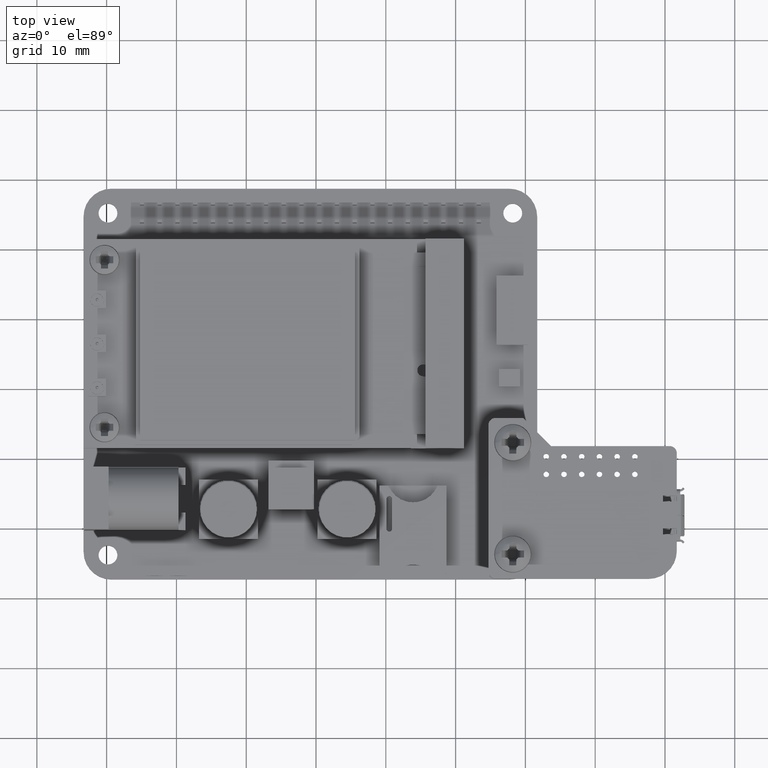
[diagram: clean part render]
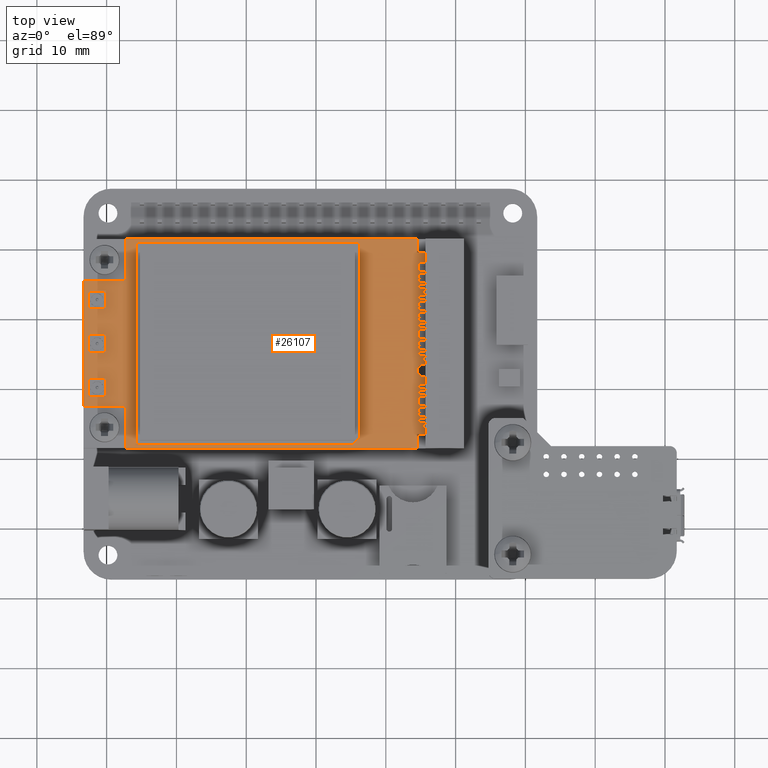
[diagram: same view with one face highlighted and labeled with its STEP entity id]
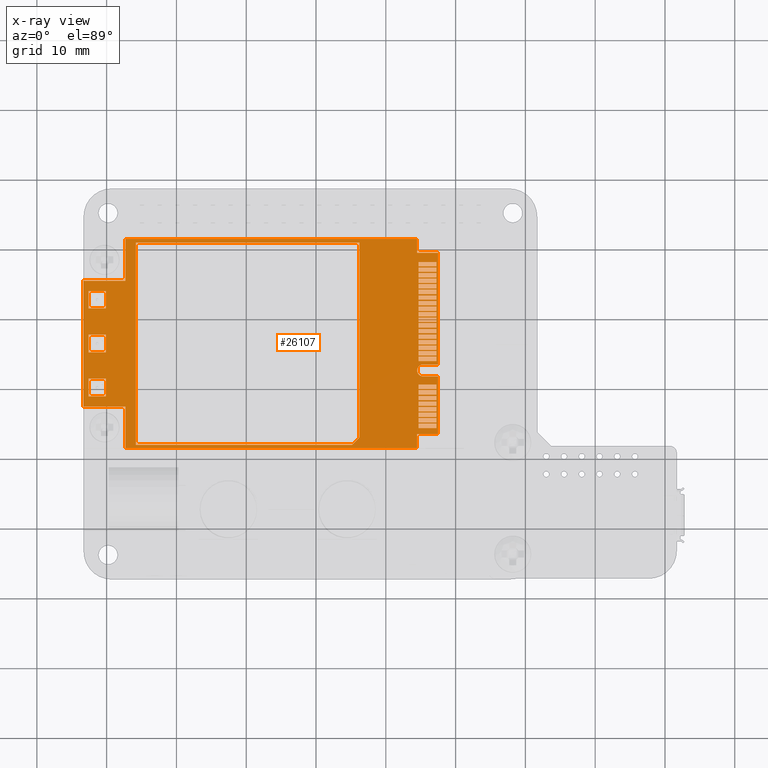
[diagram: x-ray of the same camera — body ghosted, the highlighted face saturated]
A machine part, top view. The second image highlights one B-rep face of the part: STEP entity #26107.
The next image is the same camera in x-ray: the body ghosted, the highlighted face saturated — about 0% of this face is hidden behind the body in this view.
In plain terms, the highlighted planar face has unit normal (0, 0, 1).
Its self-contained STEP definition (entity closure, byte-faithful):
#1505=LINE('',#38562,#4452);
#1511=LINE('',#38577,#4458);
#1512=LINE('',#38581,#4459);
#1516=LINE('',#38589,#4463);
#1521=LINE('',#38602,#4468);
#1525=LINE('',#38610,#4472);
#1530=LINE('',#38623,#4477);
#1534=LINE('',#38631,#4481);
#1537=LINE('',#38637,#4484);
#1540=LINE('',#38642,#4487);
#1542=LINE('',#38648,#4489);
#1546=LINE('',#38656,#4493);
#1549=LINE('',#38662,#4496);
#1552=LINE('',#38667,#4499);
#1554=LINE('',#38673,#4501);
#1558=LINE('',#38681,#4505);
#1561=LINE('',#38687,#4508);
#1564=LINE('',#38692,#4511);
#1566=LINE('',#38698,#4513);
#1570=LINE('',#38706,#4517);
#1573=LINE('',#38712,#4520);
#1576=LINE('',#38717,#4523);
#1578=LINE('',#38723,#4525);
#1582=LINE('',#38731,#4529);
#1585=LINE('',#38737,#4532);
#1588=LINE('',#38742,#4535);
#1590=LINE('',#38748,#4537);
#1594=LINE('',#38756,#4541);
#1597=LINE('',#38762,#4544);
#1600=LINE('',#38767,#4547);
#1602=LINE('',#38773,#4549);
#1606=LINE('',#38781,#4553);
#1609=LINE('',#38787,#4556);
#1612=LINE('',#38792,#4559);
#1614=LINE('',#38798,#4561);
#1618=LINE('',#38806,#4565);
#1621=LINE('',#38812,#4568);
#1624=LINE('',#38817,#4571);
#1626=LINE('',#38823,#4573);
#1630=LINE('',#38831,#4577);
#1633=LINE('',#38837,#4580);
#1636=LINE('',#38842,#4583);
#1638=LINE('',#38848,#4585);
#1642=LINE('',#38856,#4589);
#1645=LINE('',#38862,#4592);
#1648=LINE('',#38867,#4595);
#1650=LINE('',#38873,#4597);
#1654=LINE('',#38881,#4601);
#1657=LINE('',#38887,#4604);
#1660=LINE('',#38892,#4607);
#1662=LINE('',#38898,#4609);
#1666=LINE('',#38906,#4613);
#1669=LINE('',#38912,#4616);
#1672=LINE('',#38917,#4619);
#1674=LINE('',#38923,#4621);
#1678=LINE('',#38931,#4625);
#1681=LINE('',#38937,#4628);
#1684=LINE('',#38942,#4631);
#1686=LINE('',#38948,#4633);
#1690=LINE('',#38956,#4637);
#1693=LINE('',#38962,#4640);
#1696=LINE('',#38967,#4643);
#1698=LINE('',#38973,#4645);
#1702=LINE('',#38981,#4649);
#1705=LINE('',#38987,#4652);
#1708=LINE('',#38992,#4655);
#1710=LINE('',#38998,#4657);
#1714=LINE('',#39006,#4661);
#1717=LINE('',#39012,#4664);
#1720=LINE('',#39017,#4667);
#1722=LINE('',#39023,#4669);
#1726=LINE('',#39031,#4673);
#1729=LINE('',#39037,#4676);
#1732=LINE('',#39042,#4679);
#1734=LINE('',#39048,#4681);
#1738=LINE('',#39056,#4685);
#1741=LINE('',#39062,#4688);
#1744=LINE('',#39067,#4691);
#1746=LINE('',#39073,#4693);
#1750=LINE('',#39081,#4697);
#1753=LINE('',#39087,#4700);
#1756=LINE('',#39092,#4703);
#1758=LINE('',#39098,#4705);
#1762=LINE('',#39106,#4709);
#1765=LINE('',#39112,#4712);
#1768=LINE('',#39117,#4715);
#1770=LINE('',#39123,#4717);
#1774=LINE('',#39131,#4721);
#1777=LINE('',#39137,#4724);
#1780=LINE('',#39142,#4727);
#1782=LINE('',#39148,#4729);
#1786=LINE('',#39156,#4733);
#1789=LINE('',#39162,#4736);
#1792=LINE('',#39167,#4739);
#1794=LINE('',#39173,#4741);
#1798=LINE('',#39181,#4745);
#1801=LINE('',#39187,#4748);
#1804=LINE('',#39192,#4751);
#1806=LINE('',#39198,#4753);
#1810=LINE('',#39206,#4757);
#1813=LINE('',#39212,#4760);
#1816=LINE('',#39217,#4763);
#1818=LINE('',#39223,#4765);
#1822=LINE('',#39231,#4769);
#1825=LINE('',#39237,#4772);
#1828=LINE('',#39242,#4775);
#1830=LINE('',#39248,#4777);
#1834=LINE('',#39256,#4781);
#1837=LINE('',#39262,#4784);
#1840=LINE('',#39267,#4787);
#1854=LINE('',#39333,#4801);
#1857=LINE('',#39338,#4804);
#1859=LINE('',#39342,#4806);
#1861=LINE('',#39345,#4808);
#1862=LINE('',#39350,#4809);
#1865=LINE('',#39355,#4812);
#1867=LINE('',#39359,#4814);
#1869=LINE('',#39362,#4816);
#1870=LINE('',#39367,#4817);
#1873=LINE('',#39372,#4820);
#1875=LINE('',#39376,#4822);
#1877=LINE('',#39379,#4824);
#1890=LINE('',#39415,#4837);
#1894=LINE('',#39423,#4841);
#1897=LINE('',#39429,#4844);
#1900=LINE('',#39435,#4847);
#1903=LINE('',#39440,#4850);
#1906=LINE('',#39446,#4853);
#1912=LINE('',#39458,#4859);
#1914=LINE('',#39463,#4861);
#1916=LINE('',#39466,#4863);
#1919=LINE('',#39472,#4866);
#1921=LINE('',#39476,#4868);
#1924=LINE('',#39481,#4871);
#1928=LINE('',#39489,#4875);
#1930=LINE('',#39492,#4877);
#4452=VECTOR('',#31331,10.);
#4458=VECTOR('',#31345,10.);
#4459=VECTOR('',#31348,10.);
#4463=VECTOR('',#31354,10.);
#4468=VECTOR('',#31365,10.);
#4472=VECTOR('',#31371,10.);
#4477=VECTOR('',#31382,10.);
#4481=VECTOR('',#31388,10.);
#4484=VECTOR('',#31393,10.);
#4487=VECTOR('',#31398,10.);
#4489=VECTOR('',#31404,10.);
#4493=VECTOR('',#31410,10.);
#4496=VECTOR('',#31415,10.);
#4499=VECTOR('',#31420,10.);
#4501=VECTOR('',#31426,10.);
#4505=VECTOR('',#31432,10.);
#4508=VECTOR('',#31437,10.);
#4511=VECTOR('',#31442,10.);
#4513=VECTOR('',#31448,10.);
#4517=VECTOR('',#31454,10.);
#4520=VECTOR('',#31459,10.);
#4523=VECTOR('',#31464,10.);
#4525=VECTOR('',#31470,10.);
#4529=VECTOR('',#31476,10.);
#4532=VECTOR('',#31481,10.);
#4535=VECTOR('',#31486,10.);
#4537=VECTOR('',#31492,10.);
#4541=VECTOR('',#31498,10.);
#4544=VECTOR('',#31503,10.);
#4547=VECTOR('',#31508,10.);
#4549=VECTOR('',#31514,10.);
#4553=VECTOR('',#31520,10.);
#4556=VECTOR('',#31525,10.);
#4559=VECTOR('',#31530,10.);
#4561=VECTOR('',#31536,10.);
#4565=VECTOR('',#31542,10.);
#4568=VECTOR('',#31547,10.);
#4571=VECTOR('',#31552,10.);
#4573=VECTOR('',#31558,10.);
#4577=VECTOR('',#31564,10.);
#4580=VECTOR('',#31569,10.);
#4583=VECTOR('',#31574,10.);
#4585=VECTOR('',#31580,10.);
#4589=VECTOR('',#31586,10.);
#4592=VECTOR('',#31591,10.);
#4595=VECTOR('',#31596,10.);
#4597=VECTOR('',#31602,10.);
#4601=VECTOR('',#31608,10.);
#4604=VECTOR('',#31613,10.);
#4607=VECTOR('',#31618,10.);
#4609=VECTOR('',#31624,10.);
#4613=VECTOR('',#31630,10.);
#4616=VECTOR('',#31635,10.);
#4619=VECTOR('',#31640,10.);
#4621=VECTOR('',#31646,10.);
#4625=VECTOR('',#31652,10.);
#4628=VECTOR('',#31657,10.);
#4631=VECTOR('',#31662,10.);
#4633=VECTOR('',#31668,10.);
#4637=VECTOR('',#31674,10.);
#4640=VECTOR('',#31679,10.);
#4643=VECTOR('',#31684,10.);
#4645=VECTOR('',#31690,10.);
#4649=VECTOR('',#31696,10.);
#4652=VECTOR('',#31701,10.);
#4655=VECTOR('',#31706,10.);
#4657=VECTOR('',#31712,10.);
#4661=VECTOR('',#31718,10.);
#4664=VECTOR('',#31723,10.);
#4667=VECTOR('',#31728,10.);
#4669=VECTOR('',#31734,10.);
#4673=VECTOR('',#31740,10.);
#4676=VECTOR('',#31745,10.);
#4679=VECTOR('',#31750,10.);
#4681=VECTOR('',#31756,10.);
#4685=VECTOR('',#31762,10.);
#4688=VECTOR('',#31767,10.);
#4691=VECTOR('',#31772,10.);
#4693=VECTOR('',#31778,10.);
#4697=VECTOR('',#31784,10.);
#4700=VECTOR('',#31789,10.);
#4703=VECTOR('',#31794,10.);
#4705=VECTOR('',#31800,10.);
#4709=VECTOR('',#31806,10.);
#4712=VECTOR('',#31811,10.);
#4715=VECTOR('',#31816,10.);
#4717=VECTOR('',#31822,10.);
#4721=VECTOR('',#31828,10.);
#4724=VECTOR('',#31833,10.);
#4727=VECTOR('',#31838,10.);
#4729=VECTOR('',#31844,10.);
#4733=VECTOR('',#31850,10.);
#4736=VECTOR('',#31855,10.);
#4739=VECTOR('',#31860,10.);
#4741=VECTOR('',#31866,10.);
#4745=VECTOR('',#31872,10.);
#4748=VECTOR('',#31877,10.);
#4751=VECTOR('',#31882,10.);
#4753=VECTOR('',#31888,10.);
#4757=VECTOR('',#31894,10.);
#4760=VECTOR('',#31899,10.);
#4763=VECTOR('',#31904,10.);
#4765=VECTOR('',#31910,10.);
#4769=VECTOR('',#31916,10.);
#4772=VECTOR('',#31921,10.);
#4775=VECTOR('',#31926,10.);
#4777=VECTOR('',#31932,10.);
#4781=VECTOR('',#31938,10.);
#4784=VECTOR('',#31943,10.);
#4787=VECTOR('',#31948,10.);
#4801=VECTOR('',#32014,10.);
#4804=VECTOR('',#32019,10.);
#4806=VECTOR('',#32023,10.);
#4808=VECTOR('',#32027,10.);
#4809=VECTOR('',#32032,10.);
#4812=VECTOR('',#32037,10.);
#4814=VECTOR('',#32041,10.);
#4816=VECTOR('',#32045,10.);
#4817=VECTOR('',#32050,10.);
#4820=VECTOR('',#32055,10.);
#4822=VECTOR('',#32059,10.);
#4824=VECTOR('',#32063,10.);
#4837=VECTOR('',#32098,10.);
#4841=VECTOR('',#32104,10.);
#4844=VECTOR('',#32109,10.);
#4847=VECTOR('',#32114,10.);
#4850=VECTOR('',#32119,10.);
#4853=VECTOR('',#32126,10.);
#4859=VECTOR('',#32134,10.);
#4861=VECTOR('',#32138,10.);
#4863=VECTOR('',#32142,10.);
#4866=VECTOR('',#32147,10.);
#4868=VECTOR('',#32151,10.);
#4871=VECTOR('',#32156,10.);
#4875=VECTOR('',#32164,10.);
#4877=VECTOR('',#32168,10.);
#6821=PLANE('',#27625);
#8529=FACE_BOUND('',#11003,.T.);
#8530=FACE_BOUND('',#11004,.T.);
#8531=FACE_BOUND('',#11005,.T.);
#8532=FACE_BOUND('',#11006,.T.);
#8533=FACE_BOUND('',#11007,.T.);
#8534=FACE_BOUND('',#11008,.T.);
#8535=FACE_BOUND('',#11009,.T.);
#8536=FACE_BOUND('',#11010,.T.);
#8537=FACE_BOUND('',#11011,.T.);
#8538=FACE_BOUND('',#11012,.T.);
#8539=FACE_BOUND('',#11013,.T.);
#8540=FACE_BOUND('',#11014,.T.);
#8541=FACE_BOUND('',#11015,.T.);
#8542=FACE_BOUND('',#11016,.T.);
#8543=FACE_BOUND('',#11017,.T.);
#8544=FACE_BOUND('',#11018,.T.);
#8545=FACE_BOUND('',#11019,.T.);
#8546=FACE_BOUND('',#11020,.T.);
#8547=FACE_BOUND('',#11021,.T.);
#8548=FACE_BOUND('',#11022,.T.);
#8549=FACE_BOUND('',#11023,.T.);
#8550=FACE_BOUND('',#11024,.T.);
#8551=FACE_BOUND('',#11025,.T.);
#8552=FACE_BOUND('',#11026,.T.);
#8553=FACE_BOUND('',#11027,.T.);
#8554=FACE_BOUND('',#11028,.T.);
#8555=FACE_BOUND('',#11029,.T.);
#8556=FACE_BOUND('',#11030,.T.);
#8557=FACE_BOUND('',#11031,.T.);
#8558=FACE_BOUND('',#11032,.T.);
#9425=FACE_OUTER_BOUND('',#11002,.T.);
#11002=EDGE_LOOP('',(#21689,#21690,#21691,#21692,#21693,#21694,#21695,#21696,
#21697,#21698,#21699,#21700,#21701,#21702,#21703,#21704));
#11003=EDGE_LOOP('',(#21705,#21706,#21707,#21708));
#11004=EDGE_LOOP('',(#21709,#21710,#21711,#21712));
#11005=EDGE_LOOP('',(#21713,#21714,#21715,#21716));
#11006=EDGE_LOOP('',(#21717,#21718,#21719,#21720));
#11007=EDGE_LOOP('',(#21721,#21722,#21723,#21724));
#11008=EDGE_LOOP('',(#21725,#21726,#21727,#21728));
#11009=EDGE_LOOP('',(#21729,#21730,#21731,#21732));
#11010=EDGE_LOOP('',(#21733,#21734,#21735,#21736));
#11011=EDGE_LOOP('',(#21737,#21738,#21739,#21740));
#11012=EDGE_LOOP('',(#21741,#21742,#21743,#21744));
#11013=EDGE_LOOP('',(#21745,#21746,#21747,#21748));
#11014=EDGE_LOOP('',(#21749,#21750,#21751,#21752));
#11015=EDGE_LOOP('',(#21753,#21754,#21755,#21756));
#11016=EDGE_LOOP('',(#21757,#21758,#21759,#21760));
#11017=EDGE_LOOP('',(#21761,#21762,#21763,#21764));
#11018=EDGE_LOOP('',(#21765,#21766,#21767,#21768));
#11019=EDGE_LOOP('',(#21769,#21770,#21771,#21772));
#11020=EDGE_LOOP('',(#21773,#21774,#21775,#21776));
#11021=EDGE_LOOP('',(#21777,#21778,#21779,#21780));
#11022=EDGE_LOOP('',(#21781,#21782,#21783,#21784));
#11023=EDGE_LOOP('',(#21785,#21786,#21787,#21788));
#11024=EDGE_LOOP('',(#21789,#21790,#21791,#21792));
#11025=EDGE_LOOP('',(#21793,#21794,#21795,#21796));
#11026=EDGE_LOOP('',(#21797,#21798,#21799,#21800));
#11027=EDGE_LOOP('',(#21801,#21802,#21803,#21804));
#11028=EDGE_LOOP('',(#21805,#21806,#21807,#21808));
#11029=EDGE_LOOP('',(#21809,#21810,#21811,#21812));
#11030=EDGE_LOOP('',(#21813,#21814,#21815,#21816));
#11031=EDGE_LOOP('',(#21817,#21818,#21819,#21820));
#11032=EDGE_LOOP('',(#21821,#21822,#21823,#21824,#21825));
#11892=CIRCLE('',#27421,0.85);
#13232=VERTEX_POINT('',#38558);
#13234=VERTEX_POINT('',#38561);
#13237=VERTEX_POINT('',#38569);
#13239=VERTEX_POINT('',#38575);
#13240=VERTEX_POINT('',#38579);
#13241=VERTEX_POINT('',#38580);
#13244=VERTEX_POINT('',#38588);
#13248=VERTEX_POINT('',#38600);
#13249=VERTEX_POINT('',#38601);
#13252=VERTEX_POINT('',#38609);
#13256=VERTEX_POINT('',#38621);
#13257=VERTEX_POINT('',#38622);
#13260=VERTEX_POINT('',#38630);
#13262=VERTEX_POINT('',#38636);
#13264=VERTEX_POINT('',#38646);
#13265=VERTEX_POINT('',#38647);
#13268=VERTEX_POINT('',#38655);
#13270=VERTEX_POINT('',#38661);
#13272=VERTEX_POINT('',#38671);
#13273=VERTEX_POINT('',#38672);
#13276=VERTEX_POINT('',#38680);
#13278=VERTEX_POINT('',#38686);
#13280=VERTEX_POINT('',#38696);
#13281=VERTEX_POINT('',#38697);
#13284=VERTEX_POINT('',#38705);
#13286=VERTEX_POINT('',#38711);
#13288=VERTEX_POINT('',#38721);
#13289=VERTEX_POINT('',#38722);
#13292=VERTEX_POINT('',#38730);
#13294=VERTEX_POINT('',#38736);
#13296=VERTEX_POINT('',#38746);
#13297=VERTEX_POINT('',#38747);
#13300=VERTEX_POINT('',#38755);
#13302=VERTEX_POINT('',#38761);
#13304=VERTEX_POINT('',#38771);
#13305=VERTEX_POINT('',#38772);
#13308=VERTEX_POINT('',#38780);
#13310=VERTEX_POINT('',#38786);
#13312=VERTEX_POINT('',#38796);
#13313=VERTEX_POINT('',#38797);
#13316=VERTEX_POINT('',#38805);
#13318=VERTEX_POINT('',#38811);
#13320=VERTEX_POINT('',#38821);
#13321=VERTEX_POINT('',#38822);
#13324=VERTEX_POINT('',#38830);
#13326=VERTEX_POINT('',#38836);
#13328=VERTEX_POINT('',#38846);
#13329=VERTEX_POINT('',#38847);
#13332=VERTEX_POINT('',#38855);
#13334=VERTEX_POINT('',#38861);
#13336=VERTEX_POINT('',#38871);
#13337=VERTEX_POINT('',#38872);
#13340=VERTEX_POINT('',#38880);
#13342=VERTEX_POINT('',#38886);
#13344=VERTEX_POINT('',#38896);
#13345=VERTEX_POINT('',#38897);
#13348=VERTEX_POINT('',#38905);
#13350=VERTEX_POINT('',#38911);
#13352=VERTEX_POINT('',#38921);
#13353=VERTEX_POINT('',#38922);
#13356=VERTEX_POINT('',#38930);
#13358=VERTEX_POINT('',#38936);
#13360=VERTEX_POINT('',#38946);
#13361=VERTEX_POINT('',#38947);
#13364=VERTEX_POINT('',#38955);
#13366=VERTEX_POINT('',#38961);
#13368=VERTEX_POINT('',#38971);
#13369=VERTEX_POINT('',#38972);
#13372=VERTEX_POINT('',#38980);
#13374=VERTEX_POINT('',#38986);
#13376=VERTEX_POINT('',#38996);
#13377=VERTEX_POINT('',#38997);
#13380=VERTEX_POINT('',#39005);
#13382=VERTEX_POINT('',#39011);
#13384=VERTEX_POINT('',#39021);
#13385=VERTEX_POINT('',#39022);
#13388=VERTEX_POINT('',#39030);
#13390=VERTEX_POINT('',#39036);
#13392=VERTEX_POINT('',#39046);
#13393=VERTEX_POINT('',#39047);
#13396=VERTEX_POINT('',#39055);
#13398=VERTEX_POINT('',#39061);
#13400=VERTEX_POINT('',#39071);
#13401=VERTEX_POINT('',#39072);
#13404=VERTEX_POINT('',#39080);
#13406=VERTEX_POINT('',#39086);
#13408=VERTEX_POINT('',#39096);
#13409=VERTEX_POINT('',#39097);
#13412=VERTEX_POINT('',#39105);
#13414=VERTEX_POINT('',#39111);
#13416=VERTEX_POINT('',#39121);
#13417=VERTEX_POINT('',#39122);
#13420=VERTEX_POINT('',#39130);
#13422=VERTEX_POINT('',#39136);
#13424=VERTEX_POINT('',#39146);
#13425=VERTEX_POINT('',#39147);
#13428=VERTEX_POINT('',#39155);
#13430=VERTEX_POINT('',#39161);
#13432=VERTEX_POINT('',#39171);
#13433=VERTEX_POINT('',#39172);
#13436=VERTEX_POINT('',#39180);
#13438=VERTEX_POINT('',#39186);
#13440=VERTEX_POINT('',#39196);
#13441=VERTEX_POINT('',#39197);
#13444=VERTEX_POINT('',#39205);
#13446=VERTEX_POINT('',#39211);
#13448=VERTEX_POINT('',#39221);
#13449=VERTEX_POINT('',#39222);
#13452=VERTEX_POINT('',#39230);
#13454=VERTEX_POINT('',#39236);
#13456=VERTEX_POINT('',#39246);
#13457=VERTEX_POINT('',#39247);
#13460=VERTEX_POINT('',#39255);
#13462=VERTEX_POINT('',#39261);
#13488=VERTEX_POINT('',#39331);
#13489=VERTEX_POINT('',#39332);
#13490=VERTEX_POINT('',#39337);
#13491=VERTEX_POINT('',#39341);
#13492=VERTEX_POINT('',#39348);
#13493=VERTEX_POINT('',#39349);
#13494=VERTEX_POINT('',#39354);
#13495=VERTEX_POINT('',#39358);
#13496=VERTEX_POINT('',#39365);
#13497=VERTEX_POINT('',#39366);
#13498=VERTEX_POINT('',#39371);
#13499=VERTEX_POINT('',#39375);
#13510=VERTEX_POINT('',#39413);
#13511=VERTEX_POINT('',#39414);
#13514=VERTEX_POINT('',#39422);
#13516=VERTEX_POINT('',#39428);
#13518=VERTEX_POINT('',#39434);
#13522=VERTEX_POINT('',#39451);
#13525=VERTEX_POINT('',#39456);
#13526=VERTEX_POINT('',#39460);
#13529=VERTEX_POINT('',#39470);
#13530=VERTEX_POINT('',#39475);
#13533=VERTEX_POINT('',#39488);
#16035=EDGE_CURVE('',#13234,#13232,#1505,.T.);
#16040=EDGE_CURVE('',#13237,#13232,#11892,.T.);
#16043=EDGE_CURVE('',#13237,#13239,#1511,.T.);
#16044=EDGE_CURVE('',#13240,#13241,#1512,.T.);
#16048=EDGE_CURVE('',#13241,#13244,#1516,.T.);
#16054=EDGE_CURVE('',#13248,#13249,#1521,.T.);
#16058=EDGE_CURVE('',#13249,#13252,#1525,.T.);
#16064=EDGE_CURVE('',#13256,#13257,#1530,.T.);
#16068=EDGE_CURVE('',#13257,#13260,#1534,.T.);
#16071=EDGE_CURVE('',#13260,#13262,#1537,.T.);
#16074=EDGE_CURVE('',#13262,#13256,#1540,.T.);
#16076=EDGE_CURVE('',#13264,#13265,#1542,.T.);
#16080=EDGE_CURVE('',#13265,#13268,#1546,.T.);
#16083=EDGE_CURVE('',#13268,#13270,#1549,.T.);
#16086=EDGE_CURVE('',#13270,#13264,#1552,.T.);
#16088=EDGE_CURVE('',#13272,#13273,#1554,.T.);
#16092=EDGE_CURVE('',#13273,#13276,#1558,.T.);
#16095=EDGE_CURVE('',#13276,#13278,#1561,.T.);
#16098=EDGE_CURVE('',#13278,#13272,#1564,.T.);
#16100=EDGE_CURVE('',#13280,#13281,#1566,.T.);
#16104=EDGE_CURVE('',#13281,#13284,#1570,.T.);
#16107=EDGE_CURVE('',#13284,#13286,#1573,.T.);
#16110=EDGE_CURVE('',#13286,#13280,#1576,.T.);
#16112=EDGE_CURVE('',#13288,#13289,#1578,.T.);
#16116=EDGE_CURVE('',#13289,#13292,#1582,.T.);
#16119=EDGE_CURVE('',#13292,#13294,#1585,.T.);
#16122=EDGE_CURVE('',#13294,#13288,#1588,.T.);
#16124=EDGE_CURVE('',#13296,#13297,#1590,.T.);
#16128=EDGE_CURVE('',#13297,#13300,#1594,.T.);
#16131=EDGE_CURVE('',#13300,#13302,#1597,.T.);
#16134=EDGE_CURVE('',#13302,#13296,#1600,.T.);
#16136=EDGE_CURVE('',#13304,#13305,#1602,.T.);
#16140=EDGE_CURVE('',#13305,#13308,#1606,.T.);
#16143=EDGE_CURVE('',#13308,#13310,#1609,.T.);
#16146=EDGE_CURVE('',#13310,#13304,#1612,.T.);
#16148=EDGE_CURVE('',#13312,#13313,#1614,.T.);
#16152=EDGE_CURVE('',#13313,#13316,#1618,.T.);
#16155=EDGE_CURVE('',#13316,#13318,#1621,.T.);
#16158=EDGE_CURVE('',#13318,#13312,#1624,.T.);
#16160=EDGE_CURVE('',#13320,#13321,#1626,.T.);
#16164=EDGE_CURVE('',#13321,#13324,#1630,.T.);
#16167=EDGE_CURVE('',#13324,#13326,#1633,.T.);
#16170=EDGE_CURVE('',#13326,#13320,#1636,.T.);
#16172=EDGE_CURVE('',#13328,#13329,#1638,.T.);
#16176=EDGE_CURVE('',#13329,#13332,#1642,.T.);
#16179=EDGE_CURVE('',#13332,#13334,#1645,.T.);
#16182=EDGE_CURVE('',#13334,#13328,#1648,.T.);
#16184=EDGE_CURVE('',#13336,#13337,#1650,.T.);
#16188=EDGE_CURVE('',#13337,#13340,#1654,.T.);
#16191=EDGE_CURVE('',#13340,#13342,#1657,.T.);
#16194=EDGE_CURVE('',#13342,#13336,#1660,.T.);
#16196=EDGE_CURVE('',#13344,#13345,#1662,.T.);
#16200=EDGE_CURVE('',#13345,#13348,#1666,.T.);
#16203=EDGE_CURVE('',#13348,#13350,#1669,.T.);
#16206=EDGE_CURVE('',#13350,#13344,#1672,.T.);
#16208=EDGE_CURVE('',#13352,#13353,#1674,.T.);
#16212=EDGE_CURVE('',#13353,#13356,#1678,.T.);
#16215=EDGE_CURVE('',#13356,#13358,#1681,.T.);
#16218=EDGE_CURVE('',#13358,#13352,#1684,.T.);
#16220=EDGE_CURVE('',#13360,#13361,#1686,.T.);
#16224=EDGE_CURVE('',#13361,#13364,#1690,.T.);
#16227=EDGE_CURVE('',#13364,#13366,#1693,.T.);
#16230=EDGE_CURVE('',#13366,#13360,#1696,.T.);
#16232=EDGE_CURVE('',#13368,#13369,#1698,.T.);
#16236=EDGE_CURVE('',#13369,#13372,#1702,.T.);
#16239=EDGE_CURVE('',#13372,#13374,#1705,.T.);
#16242=EDGE_CURVE('',#13374,#13368,#1708,.T.);
#16244=EDGE_CURVE('',#13376,#13377,#1710,.T.);
#16248=EDGE_CURVE('',#13377,#13380,#1714,.T.);
#16251=EDGE_CURVE('',#13380,#13382,#1717,.T.);
#16254=EDGE_CURVE('',#13382,#13376,#1720,.T.);
#16256=EDGE_CURVE('',#13384,#13385,#1722,.T.);
#16260=EDGE_CURVE('',#13385,#13388,#1726,.T.);
#16263=EDGE_CURVE('',#13388,#13390,#1729,.T.);
#16266=EDGE_CURVE('',#13390,#13384,#1732,.T.);
#16268=EDGE_CURVE('',#13392,#13393,#1734,.T.);
#16272=EDGE_CURVE('',#13393,#13396,#1738,.T.);
#16275=EDGE_CURVE('',#13396,#13398,#1741,.T.);
#16278=EDGE_CURVE('',#13398,#13392,#1744,.T.);
#16280=EDGE_CURVE('',#13400,#13401,#1746,.T.);
#16284=EDGE_CURVE('',#13401,#13404,#1750,.T.);
#16287=EDGE_CURVE('',#13404,#13406,#1753,.T.);
#16290=EDGE_CURVE('',#13406,#13400,#1756,.T.);
#16292=EDGE_CURVE('',#13408,#13409,#1758,.T.);
#16296=EDGE_CURVE('',#13409,#13412,#1762,.T.);
#16299=EDGE_CURVE('',#13412,#13414,#1765,.T.);
#16302=EDGE_CURVE('',#13414,#13408,#1768,.T.);
#16304=EDGE_CURVE('',#13416,#13417,#1770,.T.);
#16308=EDGE_CURVE('',#13417,#13420,#1774,.T.);
#16311=EDGE_CURVE('',#13420,#13422,#1777,.T.);
#16314=EDGE_CURVE('',#13422,#13416,#1780,.T.);
#16316=EDGE_CURVE('',#13424,#13425,#1782,.T.);
#16320=EDGE_CURVE('',#13425,#13428,#1786,.T.);
#16323=EDGE_CURVE('',#13428,#13430,#1789,.T.);
#16326=EDGE_CURVE('',#13430,#13424,#1792,.T.);
#16328=EDGE_CURVE('',#13432,#13433,#1794,.T.);
#16332=EDGE_CURVE('',#13433,#13436,#1798,.T.);
#16335=EDGE_CURVE('',#13436,#13438,#1801,.T.);
#16338=EDGE_CURVE('',#13438,#13432,#1804,.T.);
#16340=EDGE_CURVE('',#13440,#13441,#1806,.T.);
#16344=EDGE_CURVE('',#13441,#13444,#1810,.T.);
#16347=EDGE_CURVE('',#13444,#13446,#1813,.T.);
#16350=EDGE_CURVE('',#13446,#13440,#1816,.T.);
#16352=EDGE_CURVE('',#13448,#13449,#1818,.T.);
#16356=EDGE_CURVE('',#13449,#13452,#1822,.T.);
#16359=EDGE_CURVE('',#13452,#13454,#1825,.T.);
#16362=EDGE_CURVE('',#13454,#13448,#1828,.T.);
#16364=EDGE_CURVE('',#13456,#13457,#1830,.T.);
#16368=EDGE_CURVE('',#13457,#13460,#1834,.T.);
#16371=EDGE_CURVE('',#13460,#13462,#1837,.T.);
#16374=EDGE_CURVE('',#13462,#13456,#1840,.T.);
#16400=EDGE_CURVE('',#13488,#13489,#1854,.T.);
#16403=EDGE_CURVE('',#13489,#13490,#1857,.T.);
#16405=EDGE_CURVE('',#13490,#13491,#1859,.T.);
#16407=EDGE_CURVE('',#13491,#13488,#1861,.T.);
#16408=EDGE_CURVE('',#13492,#13493,#1862,.T.);
#16411=EDGE_CURVE('',#13493,#13494,#1865,.T.);
#16413=EDGE_CURVE('',#13494,#13495,#1867,.T.);
#16415=EDGE_CURVE('',#13495,#13492,#1869,.T.);
#16416=EDGE_CURVE('',#13496,#13497,#1870,.T.);
#16419=EDGE_CURVE('',#13497,#13498,#1873,.T.);
#16421=EDGE_CURVE('',#13498,#13499,#1875,.T.);
#16423=EDGE_CURVE('',#13499,#13496,#1877,.T.);
#16438=EDGE_CURVE('',#13510,#13511,#1890,.T.);
#16442=EDGE_CURVE('',#13511,#13514,#1894,.T.);
#16445=EDGE_CURVE('',#13514,#13516,#1897,.T.);
#16448=EDGE_CURVE('',#13516,#13518,#1900,.T.);
#16451=EDGE_CURVE('',#13518,#13510,#1903,.T.);
#16454=EDGE_CURVE('',#13244,#13248,#1906,.T.);
#16460=EDGE_CURVE('',#13522,#13525,#1912,.T.);
#16462=EDGE_CURVE('',#13252,#13526,#1914,.T.);
#16464=EDGE_CURVE('',#13525,#13240,#1916,.T.);
#16467=EDGE_CURVE('',#13526,#13529,#1919,.T.);
#16469=EDGE_CURVE('',#13530,#13522,#1921,.T.);
#16472=EDGE_CURVE('',#13239,#13530,#1924,.T.);
#16476=EDGE_CURVE('',#13533,#13234,#1928,.T.);
#16478=EDGE_CURVE('',#13529,#13533,#1930,.T.);
#21689=ORIENTED_EDGE('',*,*,#16048,.T.);
#21690=ORIENTED_EDGE('',*,*,#16454,.T.);
#21691=ORIENTED_EDGE('',*,*,#16054,.T.);
#21692=ORIENTED_EDGE('',*,*,#16058,.T.);
#21693=ORIENTED_EDGE('',*,*,#16462,.T.);
#21694=ORIENTED_EDGE('',*,*,#16467,.T.);
#21695=ORIENTED_EDGE('',*,*,#16478,.T.);
#21696=ORIENTED_EDGE('',*,*,#16476,.T.);
#21697=ORIENTED_EDGE('',*,*,#16035,.T.);
#21698=ORIENTED_EDGE('',*,*,#16040,.F.);
#21699=ORIENTED_EDGE('',*,*,#16043,.T.);
#21700=ORIENTED_EDGE('',*,*,#16472,.T.);
#21701=ORIENTED_EDGE('',*,*,#16469,.T.);
#21702=ORIENTED_EDGE('',*,*,#16460,.T.);
#21703=ORIENTED_EDGE('',*,*,#16464,.T.);
#21704=ORIENTED_EDGE('',*,*,#16044,.T.);
#21705=ORIENTED_EDGE('',*,*,#16064,.T.);
#21706=ORIENTED_EDGE('',*,*,#16068,.T.);
#21707=ORIENTED_EDGE('',*,*,#16071,.T.);
#21708=ORIENTED_EDGE('',*,*,#16074,.T.);
#21709=ORIENTED_EDGE('',*,*,#16076,.T.);
#21710=ORIENTED_EDGE('',*,*,#16080,.T.);
#21711=ORIENTED_EDGE('',*,*,#16083,.T.);
#21712=ORIENTED_EDGE('',*,*,#16086,.T.);
#21713=ORIENTED_EDGE('',*,*,#16088,.T.);
#21714=ORIENTED_EDGE('',*,*,#16092,.T.);
#21715=ORIENTED_EDGE('',*,*,#16095,.T.);
#21716=ORIENTED_EDGE('',*,*,#16098,.T.);
#21717=ORIENTED_EDGE('',*,*,#16100,.T.);
#21718=ORIENTED_EDGE('',*,*,#16104,.T.);
#21719=ORIENTED_EDGE('',*,*,#16107,.T.);
#21720=ORIENTED_EDGE('',*,*,#16110,.T.);
#21721=ORIENTED_EDGE('',*,*,#16112,.T.);
#21722=ORIENTED_EDGE('',*,*,#16116,.T.);
#21723=ORIENTED_EDGE('',*,*,#16119,.T.);
#21724=ORIENTED_EDGE('',*,*,#16122,.T.);
#21725=ORIENTED_EDGE('',*,*,#16124,.T.);
#21726=ORIENTED_EDGE('',*,*,#16128,.T.);
#21727=ORIENTED_EDGE('',*,*,#16131,.T.);
#21728=ORIENTED_EDGE('',*,*,#16134,.T.);
#21729=ORIENTED_EDGE('',*,*,#16136,.T.);
#21730=ORIENTED_EDGE('',*,*,#16140,.T.);
#21731=ORIENTED_EDGE('',*,*,#16143,.T.);
#21732=ORIENTED_EDGE('',*,*,#16146,.T.);
#21733=ORIENTED_EDGE('',*,*,#16148,.T.);
#21734=ORIENTED_EDGE('',*,*,#16152,.T.);
#21735=ORIENTED_EDGE('',*,*,#16155,.T.);
#21736=ORIENTED_EDGE('',*,*,#16158,.T.);
#21737=ORIENTED_EDGE('',*,*,#16160,.T.);
#21738=ORIENTED_EDGE('',*,*,#16164,.T.);
#21739=ORIENTED_EDGE('',*,*,#16167,.T.);
#21740=ORIENTED_EDGE('',*,*,#16170,.T.);
#21741=ORIENTED_EDGE('',*,*,#16172,.T.);
#21742=ORIENTED_EDGE('',*,*,#16176,.T.);
#21743=ORIENTED_EDGE('',*,*,#16179,.T.);
#21744=ORIENTED_EDGE('',*,*,#16182,.T.);
#21745=ORIENTED_EDGE('',*,*,#16184,.T.);
#21746=ORIENTED_EDGE('',*,*,#16188,.T.);
#21747=ORIENTED_EDGE('',*,*,#16191,.T.);
#21748=ORIENTED_EDGE('',*,*,#16194,.T.);
#21749=ORIENTED_EDGE('',*,*,#16196,.T.);
#21750=ORIENTED_EDGE('',*,*,#16200,.T.);
#21751=ORIENTED_EDGE('',*,*,#16203,.T.);
#21752=ORIENTED_EDGE('',*,*,#16206,.T.);
#21753=ORIENTED_EDGE('',*,*,#16208,.T.);
#21754=ORIENTED_EDGE('',*,*,#16212,.T.);
#21755=ORIENTED_EDGE('',*,*,#16215,.T.);
#21756=ORIENTED_EDGE('',*,*,#16218,.T.);
#21757=ORIENTED_EDGE('',*,*,#16220,.T.);
#21758=ORIENTED_EDGE('',*,*,#16224,.T.);
#21759=ORIENTED_EDGE('',*,*,#16227,.T.);
#21760=ORIENTED_EDGE('',*,*,#16230,.T.);
#21761=ORIENTED_EDGE('',*,*,#16232,.T.);
#21762=ORIENTED_EDGE('',*,*,#16236,.T.);
#21763=ORIENTED_EDGE('',*,*,#16239,.T.);
#21764=ORIENTED_EDGE('',*,*,#16242,.T.);
#21765=ORIENTED_EDGE('',*,*,#16244,.T.);
#21766=ORIENTED_EDGE('',*,*,#16248,.T.);
#21767=ORIENTED_EDGE('',*,*,#16251,.T.);
#21768=ORIENTED_EDGE('',*,*,#16254,.T.);
#21769=ORIENTED_EDGE('',*,*,#16256,.T.);
#21770=ORIENTED_EDGE('',*,*,#16260,.T.);
#21771=ORIENTED_EDGE('',*,*,#16263,.T.);
#21772=ORIENTED_EDGE('',*,*,#16266,.T.);
#21773=ORIENTED_EDGE('',*,*,#16268,.T.);
#21774=ORIENTED_EDGE('',*,*,#16272,.T.);
#21775=ORIENTED_EDGE('',*,*,#16275,.T.);
#21776=ORIENTED_EDGE('',*,*,#16278,.T.);
#21777=ORIENTED_EDGE('',*,*,#16280,.T.);
#21778=ORIENTED_EDGE('',*,*,#16284,.T.);
#21779=ORIENTED_EDGE('',*,*,#16287,.T.);
#21780=ORIENTED_EDGE('',*,*,#16290,.T.);
#21781=ORIENTED_EDGE('',*,*,#16292,.T.);
#21782=ORIENTED_EDGE('',*,*,#16296,.T.);
#21783=ORIENTED_EDGE('',*,*,#16299,.T.);
#21784=ORIENTED_EDGE('',*,*,#16302,.T.);
#21785=ORIENTED_EDGE('',*,*,#16304,.T.);
#21786=ORIENTED_EDGE('',*,*,#16308,.T.);
#21787=ORIENTED_EDGE('',*,*,#16311,.T.);
#21788=ORIENTED_EDGE('',*,*,#16314,.T.);
#21789=ORIENTED_EDGE('',*,*,#16316,.T.);
#21790=ORIENTED_EDGE('',*,*,#16320,.T.);
#21791=ORIENTED_EDGE('',*,*,#16323,.T.);
#21792=ORIENTED_EDGE('',*,*,#16326,.T.);
#21793=ORIENTED_EDGE('',*,*,#16328,.T.);
#21794=ORIENTED_EDGE('',*,*,#16332,.T.);
#21795=ORIENTED_EDGE('',*,*,#16335,.T.);
#21796=ORIENTED_EDGE('',*,*,#16338,.T.);
#21797=ORIENTED_EDGE('',*,*,#16340,.T.);
#21798=ORIENTED_EDGE('',*,*,#16344,.T.);
#21799=ORIENTED_EDGE('',*,*,#16347,.T.);
#21800=ORIENTED_EDGE('',*,*,#16350,.T.);
#21801=ORIENTED_EDGE('',*,*,#16352,.T.);
#21802=ORIENTED_EDGE('',*,*,#16356,.T.);
#21803=ORIENTED_EDGE('',*,*,#16359,.T.);
#21804=ORIENTED_EDGE('',*,*,#16362,.T.);
#21805=ORIENTED_EDGE('',*,*,#16364,.T.);
#21806=ORIENTED_EDGE('',*,*,#16368,.T.);
#21807=ORIENTED_EDGE('',*,*,#16371,.T.);
#21808=ORIENTED_EDGE('',*,*,#16374,.T.);
#21809=ORIENTED_EDGE('',*,*,#16400,.T.);
#21810=ORIENTED_EDGE('',*,*,#16403,.T.);
#21811=ORIENTED_EDGE('',*,*,#16405,.T.);
#21812=ORIENTED_EDGE('',*,*,#16407,.T.);
#21813=ORIENTED_EDGE('',*,*,#16408,.T.);
#21814=ORIENTED_EDGE('',*,*,#16411,.T.);
#21815=ORIENTED_EDGE('',*,*,#16413,.T.);
#21816=ORIENTED_EDGE('',*,*,#16415,.T.);
#21817=ORIENTED_EDGE('',*,*,#16416,.T.);
#21818=ORIENTED_EDGE('',*,*,#16419,.T.);
#21819=ORIENTED_EDGE('',*,*,#16421,.T.);
#21820=ORIENTED_EDGE('',*,*,#16423,.T.);
#21821=ORIENTED_EDGE('',*,*,#16438,.T.);
#21822=ORIENTED_EDGE('',*,*,#16442,.T.);
#21823=ORIENTED_EDGE('',*,*,#16445,.T.);
#21824=ORIENTED_EDGE('',*,*,#16448,.T.);
#21825=ORIENTED_EDGE('',*,*,#16451,.T.);
#26107=ADVANCED_FACE('',(#9425,#8529,#8530,#8531,#8532,#8533,#8534,#8535,
#8536,#8537,#8538,#8539,#8540,#8541,#8542,#8543,#8544,#8545,#8546,#8547,
#8548,#8549,#8550,#8551,#8552,#8553,#8554,#8555,#8556,#8557,#8558),#6821,
 .T.);
#27421=AXIS2_PLACEMENT_3D('',#38571,#31339,#31340);
#27625=AXIS2_PLACEMENT_3D('',#39493,#32169,#32170);
#31331=DIRECTION('',(-1.,0.,0.));
#31339=DIRECTION('center_axis',(0.,0.,1.));
#31340=DIRECTION('ref_axis',(-0.707106781186548,0.707106781186548,0.));
#31345=DIRECTION('',(1.,1.8503717077086E-16,0.));
#31348=DIRECTION('',(0.,-1.,0.));
#31354=DIRECTION('',(-1.,-1.85037170770859E-16,0.));
#31365=DIRECTION('',(1.,1.85037170770859E-16,0.));
#31371=DIRECTION('',(0.,-1.,0.));
#31382=DIRECTION('',(0.,1.,0.));
#31388=DIRECTION('',(1.,0.,0.));
#31393=DIRECTION('',(0.,-1.,0.));
#31398=DIRECTION('',(-1.,0.,0.));
#31404=DIRECTION('',(0.,1.,0.));
#31410=DIRECTION('',(1.,0.,0.));
#31415=DIRECTION('',(0.,-1.,0.));
#31420=DIRECTION('',(-1.,0.,0.));
#31426=DIRECTION('',(0.,1.,0.));
#31432=DIRECTION('',(1.,0.,0.));
#31437=DIRECTION('',(0.,-1.,0.));
#31442=DIRECTION('',(-1.,0.,0.));
#31448=DIRECTION('',(0.,1.,0.));
#31454=DIRECTION('',(1.,0.,0.));
#31459=DIRECTION('',(0.,-1.,0.));
#31464=DIRECTION('',(-1.,0.,0.));
#31470=DIRECTION('',(0.,1.,0.));
#31476=DIRECTION('',(1.,0.,0.));
#31481=DIRECTION('',(0.,-1.,0.));
#31486=DIRECTION('',(-1.,0.,0.));
#31492=DIRECTION('',(0.,1.,0.));
#31498=DIRECTION('',(1.,0.,0.));
#31503=DIRECTION('',(0.,-1.,0.));
#31508=DIRECTION('',(-1.,0.,0.));
#31514=DIRECTION('',(0.,1.,0.));
#31520=DIRECTION('',(1.,0.,0.));
#31525=DIRECTION('',(0.,-1.,0.));
#31530=DIRECTION('',(-1.,0.,0.));
#31536=DIRECTION('',(0.,1.,0.));
#31542=DIRECTION('',(1.,0.,0.));
#31547=DIRECTION('',(0.,-1.,0.));
#31552=DIRECTION('',(-1.,0.,0.));
#31558=DIRECTION('',(0.,1.,0.));
#31564=DIRECTION('',(1.,0.,0.));
#31569=DIRECTION('',(0.,-1.,0.));
#31574=DIRECTION('',(-1.,2.17690789142188E-16,0.));
#31580=DIRECTION('',(0.,1.,0.));
#31586=DIRECTION('',(1.,0.,0.));
#31591=DIRECTION('',(0.,-1.,0.));
#31596=DIRECTION('',(-1.,2.17690789142188E-16,0.));
#31602=DIRECTION('',(0.,1.,0.));
#31608=DIRECTION('',(1.,0.,0.));
#31613=DIRECTION('',(0.,-1.,0.));
#31618=DIRECTION('',(-1.,2.17690789142188E-16,0.));
#31624=DIRECTION('',(0.,1.,0.));
#31630=DIRECTION('',(1.,0.,0.));
#31635=DIRECTION('',(0.,-1.,0.));
#31640=DIRECTION('',(-1.,2.17690789142188E-16,0.));
#31646=DIRECTION('',(0.,1.,0.));
#31652=DIRECTION('',(1.,0.,0.));
#31657=DIRECTION('',(0.,-1.,0.));
#31662=DIRECTION('',(-1.,2.17690789142188E-16,0.));
#31668=DIRECTION('',(0.,1.,0.));
#31674=DIRECTION('',(1.,0.,0.));
#31679=DIRECTION('',(0.,-1.,0.));
#31684=DIRECTION('',(-1.,2.17690789142188E-16,0.));
#31690=DIRECTION('',(0.,1.,0.));
#31696=DIRECTION('',(1.,0.,0.));
#31701=DIRECTION('',(0.,-1.,0.));
#31706=DIRECTION('',(-1.,2.17690789142188E-16,0.));
#31712=DIRECTION('',(0.,1.,0.));
#31718=DIRECTION('',(1.,0.,0.));
#31723=DIRECTION('',(0.,-1.,0.));
#31728=DIRECTION('',(-1.,2.17690789142188E-16,0.));
#31734=DIRECTION('',(0.,1.,0.));
#31740=DIRECTION('',(1.,0.,0.));
#31745=DIRECTION('',(0.,-1.,0.));
#31750=DIRECTION('',(-1.,2.17690789142188E-16,0.));
#31756=DIRECTION('',(0.,1.,0.));
#31762=DIRECTION('',(1.,0.,0.));
#31767=DIRECTION('',(0.,-1.,0.));
#31772=DIRECTION('',(-1.,2.17690789142188E-16,0.));
#31778=DIRECTION('',(0.,1.,0.));
#31784=DIRECTION('',(1.,0.,0.));
#31789=DIRECTION('',(0.,-1.,0.));
#31794=DIRECTION('',(-1.,2.17690789142188E-16,0.));
#31800=DIRECTION('',(0.,1.,0.));
#31806=DIRECTION('',(1.,0.,0.));
#31811=DIRECTION('',(0.,-1.,0.));
#31816=DIRECTION('',(-1.,2.17690789142188E-16,0.));
#31822=DIRECTION('',(0.,1.,0.));
#31828=DIRECTION('',(1.,0.,0.));
#31833=DIRECTION('',(0.,-1.,0.));
#31838=DIRECTION('',(-1.,2.17690789142188E-16,0.));
#31844=DIRECTION('',(0.,1.,0.));
#31850=DIRECTION('',(1.,0.,0.));
#31855=DIRECTION('',(0.,-1.,0.));
#31860=DIRECTION('',(-1.,2.17690789142188E-16,0.));
#31866=DIRECTION('',(0.,1.,0.));
#31872=DIRECTION('',(1.,0.,0.));
#31877=DIRECTION('',(0.,-1.,0.));
#31882=DIRECTION('',(-1.,2.17690789142188E-16,0.));
#31888=DIRECTION('',(0.,1.,0.));
#31894=DIRECTION('',(1.,0.,0.));
#31899=DIRECTION('',(0.,-1.,0.));
#31904=DIRECTION('',(-1.,2.17690789142188E-16,0.));
#31910=DIRECTION('',(0.,1.,0.));
#31916=DIRECTION('',(1.,0.,0.));
#31921=DIRECTION('',(0.,-1.,0.));
#31926=DIRECTION('',(-1.,2.17690789142188E-16,0.));
#31932=DIRECTION('',(0.,1.,0.));
#31938=DIRECTION('',(1.,0.,0.));
#31943=DIRECTION('',(0.,-1.,0.));
#31948=DIRECTION('',(-1.,2.17690789142188E-16,0.));
#32014=DIRECTION('',(0.,-1.,0.));
#32019=DIRECTION('',(-1.,0.,0.));
#32023=DIRECTION('',(-1.77635683940025E-15,1.,0.));
#32027=DIRECTION('',(1.,0.,0.));
#32032=DIRECTION('',(1.,0.,0.));
#32037=DIRECTION('',(0.,-1.,0.));
#32041=DIRECTION('',(-1.,-9.99200722162641E-16,0.));
#32045=DIRECTION('',(0.,1.,0.));
#32050=DIRECTION('',(0.,-1.,0.));
#32055=DIRECTION('',(-1.,0.,0.));
#32059=DIRECTION('',(0.,1.,0.));
#32063=DIRECTION('',(1.,0.,0.));
#32098=DIRECTION('',(1.,0.,0.));
#32104=DIRECTION('',(3.82835525732813E-16,-1.,0.));
#32109=DIRECTION('',(-0.707106781186548,-0.707106781186548,0.));
#32114=DIRECTION('',(-1.,-6.93889390390723E-16,0.));
#32119=DIRECTION('',(-3.82835525732813E-16,1.,0.));
#32126=DIRECTION('',(4.44089209850063E-16,-1.,0.));
#32134=DIRECTION('',(-4.44089209850063E-16,1.,0.));
#32138=DIRECTION('',(1.,5.5743415462351E-16,0.));
#32142=DIRECTION('',(-1.,-4.18075615967632E-16,0.));
#32147=DIRECTION('',(-4.44089209850063E-16,1.,0.));
#32151=DIRECTION('',(-1.,0.,0.));
#32156=DIRECTION('',(0.,1.,0.));
#32164=DIRECTION('',(0.,1.,0.));
#32168=DIRECTION('',(1.,0.,0.));
#32169=DIRECTION('center_axis',(0.,0.,1.));
#32170=DIRECTION('ref_axis',(1.,0.,0.));
#38558=CARTESIAN_POINT('',(24.75,-4.69999999999998,0.5));
#38561=CARTESIAN_POINT('',(26.9,-4.69999999999998,0.5));
#38562=CARTESIAN_POINT('',(26.9,-4.69999999999998,0.5));
#38569=CARTESIAN_POINT('',(24.75,-2.99999999999999,0.5));
#38571=CARTESIAN_POINT('Origin',(24.75,-3.84999999999999,0.5));
#38575=CARTESIAN_POINT('',(26.9,-2.99999999999999,0.5));
#38577=CARTESIAN_POINT('',(23.9,-2.99999999999999,0.5));
#38579=CARTESIAN_POINT('',(-17.9,15.,0.5));
#38580=CARTESIAN_POINT('',(-17.9,8.99999999999999,0.5));
#38581=CARTESIAN_POINT('',(-17.9,0.0750000000000056,0.5));
#38588=CARTESIAN_POINT('',(-23.9,8.99999999999999,0.5));
#38589=CARTESIAN_POINT('',(0.749999999999996,8.99999999999999,0.5));
#38600=CARTESIAN_POINT('',(-23.9,-9.00000000000001,0.5));
#38601=CARTESIAN_POINT('',(-17.9,-9.00000000000001,0.5));
#38602=CARTESIAN_POINT('',(3.75,-9.00000000000001,0.5));
#38609=CARTESIAN_POINT('',(-17.9,-15.,0.5));
#38610=CARTESIAN_POINT('',(-17.9,-11.925,0.5));
#38621=CARTESIAN_POINT('',(24.1,-12.1,0.5));
#38622=CARTESIAN_POINT('',(24.1,-11.5,0.5));
#38623=CARTESIAN_POINT('',(24.1,-10.175,0.5));
#38630=CARTESIAN_POINT('',(26.65,-11.5,0.5));
#38631=CARTESIAN_POINT('',(26.025,-11.5,0.5));
#38636=CARTESIAN_POINT('',(26.65,-12.1,0.5));
#38637=CARTESIAN_POINT('',(26.65,-10.475,0.5));
#38642=CARTESIAN_POINT('',(24.75,-12.1,0.5));
#38646=CARTESIAN_POINT('',(24.1,-11.3,0.5));
#38647=CARTESIAN_POINT('',(24.1,-10.7,0.5));
#38648=CARTESIAN_POINT('',(24.1,-9.77499999999998,0.5));
#38655=CARTESIAN_POINT('',(26.65,-10.7,0.5));
#38656=CARTESIAN_POINT('',(26.025,-10.7,0.5));
#38661=CARTESIAN_POINT('',(26.65,-11.3,0.5));
#38662=CARTESIAN_POINT('',(26.65,-10.075,0.5));
#38667=CARTESIAN_POINT('',(24.75,-11.3,0.5));
#38671=CARTESIAN_POINT('',(24.1,-10.5,0.5));
#38672=CARTESIAN_POINT('',(24.1,-9.89999999999999,0.5));
#38673=CARTESIAN_POINT('',(24.1,-9.37499999999998,0.5));
#38680=CARTESIAN_POINT('',(26.65,-9.89999999999999,0.5));
#38681=CARTESIAN_POINT('',(26.025,-9.89999999999999,0.5));
#38686=CARTESIAN_POINT('',(26.65,-10.5,0.5));
#38687=CARTESIAN_POINT('',(26.65,-9.67499999999998,0.5));
#38692=CARTESIAN_POINT('',(24.75,-10.5,0.5));
#38696=CARTESIAN_POINT('',(24.1,-9.69999999999999,0.5));
#38697=CARTESIAN_POINT('',(24.1,-9.09999999999999,0.5));
#38698=CARTESIAN_POINT('',(24.1,-8.97499999999998,0.5));
#38705=CARTESIAN_POINT('',(26.65,-9.09999999999999,0.5));
#38706=CARTESIAN_POINT('',(26.025,-9.09999999999999,0.5));
#38711=CARTESIAN_POINT('',(26.65,-9.69999999999999,0.5));
#38712=CARTESIAN_POINT('',(26.65,-9.27499999999998,0.5));
#38717=CARTESIAN_POINT('',(24.75,-9.69999999999999,0.5));
#38721=CARTESIAN_POINT('',(24.1,-8.89999999999999,0.5));
#38722=CARTESIAN_POINT('',(24.1,-8.29999999999998,0.5));
#38723=CARTESIAN_POINT('',(24.1,-8.57499999999998,0.5));
#38730=CARTESIAN_POINT('',(26.65,-8.29999999999998,0.5));
#38731=CARTESIAN_POINT('',(26.025,-8.29999999999998,0.5));
#38736=CARTESIAN_POINT('',(26.65,-8.89999999999999,0.5));
#38737=CARTESIAN_POINT('',(26.65,-8.87499999999998,0.5));
#38742=CARTESIAN_POINT('',(24.75,-8.89999999999999,0.5));
#38746=CARTESIAN_POINT('',(24.1,-8.09999999999999,0.5));
#38747=CARTESIAN_POINT('',(24.1,-7.49999999999999,0.5));
#38748=CARTESIAN_POINT('',(24.1,-8.17499999999998,0.5));
#38755=CARTESIAN_POINT('',(26.65,-7.49999999999999,0.5));
#38756=CARTESIAN_POINT('',(26.025,-7.49999999999999,0.5));
#38761=CARTESIAN_POINT('',(26.65,-8.09999999999999,0.5));
#38762=CARTESIAN_POINT('',(26.65,-8.47499999999998,0.5));
#38767=CARTESIAN_POINT('',(24.75,-8.09999999999999,0.5));
#38771=CARTESIAN_POINT('',(24.1,-7.29999999999998,0.5));
#38772=CARTESIAN_POINT('',(24.1,-6.69999999999999,0.5));
#38773=CARTESIAN_POINT('',(24.1,-7.77499999999998,0.5));
#38780=CARTESIAN_POINT('',(26.65,-6.69999999999999,0.5));
#38781=CARTESIAN_POINT('',(26.025,-6.69999999999999,0.5));
#38786=CARTESIAN_POINT('',(26.65,-7.29999999999998,0.5));
#38787=CARTESIAN_POINT('',(26.65,-8.07499999999998,0.5));
#38792=CARTESIAN_POINT('',(24.75,-7.29999999999998,0.5));
#38796=CARTESIAN_POINT('',(24.1,-6.49999999999998,0.5));
#38797=CARTESIAN_POINT('',(24.1,-5.89999999999999,0.5));
#38798=CARTESIAN_POINT('',(24.1,-7.37499999999998,0.5));
#38805=CARTESIAN_POINT('',(26.65,-5.89999999999999,0.5));
#38806=CARTESIAN_POINT('',(26.025,-5.89999999999999,0.5));
#38811=CARTESIAN_POINT('',(26.65,-6.49999999999998,0.5));
#38812=CARTESIAN_POINT('',(26.65,-7.67499999999998,0.5));
#38817=CARTESIAN_POINT('',(24.75,-6.49999999999998,0.5));
#38821=CARTESIAN_POINT('',(24.1,11.1,0.5));
#38822=CARTESIAN_POINT('',(24.1,11.7,0.5));
#38823=CARTESIAN_POINT('',(24.1,1.42500000000002,0.5));
#38830=CARTESIAN_POINT('',(26.65,11.7,0.5));
#38831=CARTESIAN_POINT('',(26.025,11.7,0.5));
#38836=CARTESIAN_POINT('',(26.65,11.1,0.5));
#38837=CARTESIAN_POINT('',(26.65,1.12500000000002,0.5));
#38842=CARTESIAN_POINT('',(24.75,11.1,0.5));
#38846=CARTESIAN_POINT('',(24.1,10.3,0.5));
#38847=CARTESIAN_POINT('',(24.1,10.9,0.5));
#38848=CARTESIAN_POINT('',(24.1,1.02500000000002,0.5));
#38855=CARTESIAN_POINT('',(26.65,10.9,0.5));
#38856=CARTESIAN_POINT('',(26.025,10.9,0.5));
#38861=CARTESIAN_POINT('',(26.65,10.3,0.5));
#38862=CARTESIAN_POINT('',(26.65,0.72500000000002,0.5));
#38867=CARTESIAN_POINT('',(24.75,10.3,0.5));
#38871=CARTESIAN_POINT('',(24.1,9.50000000000002,0.5));
#38872=CARTESIAN_POINT('',(24.1,10.1,0.5));
#38873=CARTESIAN_POINT('',(24.1,0.62500000000002,0.5));
#38880=CARTESIAN_POINT('',(26.65,10.1,0.5));
#38881=CARTESIAN_POINT('',(26.025,10.1,0.5));
#38886=CARTESIAN_POINT('',(26.65,9.50000000000002,0.5));
#38887=CARTESIAN_POINT('',(26.65,0.32500000000002,0.5));
#38892=CARTESIAN_POINT('',(24.75,9.50000000000002,0.5));
#38896=CARTESIAN_POINT('',(24.1,8.70000000000002,0.5));
#38897=CARTESIAN_POINT('',(24.1,9.30000000000002,0.5));
#38898=CARTESIAN_POINT('',(24.1,0.22500000000002,0.5));
#38905=CARTESIAN_POINT('',(26.65,9.30000000000002,0.5));
#38906=CARTESIAN_POINT('',(26.025,9.30000000000002,0.5));
#38911=CARTESIAN_POINT('',(26.65,8.70000000000002,0.5));
#38912=CARTESIAN_POINT('',(26.65,-0.0749999999999806,0.5));
#38917=CARTESIAN_POINT('',(24.75,8.70000000000002,0.5));
#38921=CARTESIAN_POINT('',(24.1,7.90000000000002,0.5));
#38922=CARTESIAN_POINT('',(24.1,8.50000000000002,0.5));
#38923=CARTESIAN_POINT('',(24.1,-0.17499999999998,0.5));
#38930=CARTESIAN_POINT('',(26.65,8.50000000000002,0.5));
#38931=CARTESIAN_POINT('',(26.025,8.50000000000002,0.5));
#38936=CARTESIAN_POINT('',(26.65,7.90000000000002,0.5));
#38937=CARTESIAN_POINT('',(26.65,-0.47499999999998,0.5));
#38942=CARTESIAN_POINT('',(24.75,7.90000000000002,0.5));
#38946=CARTESIAN_POINT('',(24.1,7.10000000000002,0.5));
#38947=CARTESIAN_POINT('',(24.1,7.70000000000002,0.5));
#38948=CARTESIAN_POINT('',(24.1,-0.57499999999998,0.5));
#38955=CARTESIAN_POINT('',(26.65,7.70000000000002,0.5));
#38956=CARTESIAN_POINT('',(26.025,7.70000000000002,0.5));
#38961=CARTESIAN_POINT('',(26.65,7.10000000000002,0.5));
#38962=CARTESIAN_POINT('',(26.65,-0.87499999999998,0.5));
#38967=CARTESIAN_POINT('',(24.75,7.10000000000002,0.5));
#38971=CARTESIAN_POINT('',(24.1,6.30000000000002,0.5));
#38972=CARTESIAN_POINT('',(24.1,6.90000000000002,0.5));
#38973=CARTESIAN_POINT('',(24.1,-0.97499999999998,0.5));
#38980=CARTESIAN_POINT('',(26.65,6.90000000000002,0.5));
#38981=CARTESIAN_POINT('',(26.025,6.90000000000002,0.5));
#38986=CARTESIAN_POINT('',(26.65,6.30000000000002,0.5));
#38987=CARTESIAN_POINT('',(26.65,-1.27499999999998,0.5));
#38992=CARTESIAN_POINT('',(24.75,6.30000000000002,0.5));
#38996=CARTESIAN_POINT('',(24.1,5.50000000000002,0.5));
#38997=CARTESIAN_POINT('',(24.1,6.10000000000002,0.5));
#38998=CARTESIAN_POINT('',(24.1,-1.37499999999998,0.5));
#39005=CARTESIAN_POINT('',(26.65,6.10000000000002,0.5));
#39006=CARTESIAN_POINT('',(26.025,6.10000000000002,0.5));
#39011=CARTESIAN_POINT('',(26.65,5.50000000000002,0.5));
#39012=CARTESIAN_POINT('',(26.65,-1.67499999999998,0.5));
#39017=CARTESIAN_POINT('',(24.75,5.50000000000002,0.5));
#39021=CARTESIAN_POINT('',(24.1,4.70000000000002,0.5));
#39022=CARTESIAN_POINT('',(24.1,5.30000000000002,0.5));
#39023=CARTESIAN_POINT('',(24.1,-1.77499999999998,0.5));
#39030=CARTESIAN_POINT('',(26.65,5.30000000000002,0.5));
#39031=CARTESIAN_POINT('',(26.025,5.30000000000002,0.5));
#39036=CARTESIAN_POINT('',(26.65,4.70000000000002,0.5));
#39037=CARTESIAN_POINT('',(26.65,-2.07499999999998,0.5));
#39042=CARTESIAN_POINT('',(24.75,4.70000000000002,0.5));
#39046=CARTESIAN_POINT('',(24.1,3.90000000000002,0.5));
#39047=CARTESIAN_POINT('',(24.1,4.50000000000002,0.5));
#39048=CARTESIAN_POINT('',(24.1,-2.17499999999998,0.5));
#39055=CARTESIAN_POINT('',(26.65,4.50000000000002,0.5));
#39056=CARTESIAN_POINT('',(26.025,4.50000000000002,0.5));
#39061=CARTESIAN_POINT('',(26.65,3.90000000000002,0.5));
#39062=CARTESIAN_POINT('',(26.65,-2.47499999999998,0.5));
#39067=CARTESIAN_POINT('',(24.75,3.90000000000002,0.5));
#39071=CARTESIAN_POINT('',(24.1,3.10000000000002,0.5));
#39072=CARTESIAN_POINT('',(24.1,3.70000000000002,0.5));
#39073=CARTESIAN_POINT('',(24.1,-2.57499999999998,0.5));
#39080=CARTESIAN_POINT('',(26.65,3.70000000000002,0.5));
#39081=CARTESIAN_POINT('',(26.025,3.70000000000002,0.5));
#39086=CARTESIAN_POINT('',(26.65,3.10000000000002,0.5));
#39087=CARTESIAN_POINT('',(26.65,-2.87499999999998,0.5));
#39092=CARTESIAN_POINT('',(24.75,3.10000000000002,0.5));
#39096=CARTESIAN_POINT('',(24.1,2.30000000000002,0.5));
#39097=CARTESIAN_POINT('',(24.1,2.90000000000002,0.5));
#39098=CARTESIAN_POINT('',(24.1,-2.97499999999998,0.5));
#39105=CARTESIAN_POINT('',(26.65,2.90000000000002,0.5));
#39106=CARTESIAN_POINT('',(26.025,2.90000000000002,0.5));
#39111=CARTESIAN_POINT('',(26.65,2.30000000000002,0.5));
#39112=CARTESIAN_POINT('',(26.65,-3.27499999999998,0.5));
#39117=CARTESIAN_POINT('',(24.75,2.30000000000002,0.5));
#39121=CARTESIAN_POINT('',(24.1,1.50000000000002,0.5));
#39122=CARTESIAN_POINT('',(24.1,2.10000000000002,0.5));
#39123=CARTESIAN_POINT('',(24.1,-3.37499999999998,0.5));
#39130=CARTESIAN_POINT('',(26.65,2.10000000000002,0.5));
#39131=CARTESIAN_POINT('',(26.025,2.10000000000002,0.5));
#39136=CARTESIAN_POINT('',(26.65,1.50000000000002,0.5));
#39137=CARTESIAN_POINT('',(26.65,-3.67499999999998,0.5));
#39142=CARTESIAN_POINT('',(24.75,1.50000000000002,0.5));
#39146=CARTESIAN_POINT('',(24.1,0.700000000000016,0.5));
#39147=CARTESIAN_POINT('',(24.1,1.30000000000002,0.5));
#39148=CARTESIAN_POINT('',(24.1,-3.77499999999998,0.5));
#39155=CARTESIAN_POINT('',(26.65,1.30000000000002,0.5));
#39156=CARTESIAN_POINT('',(26.025,1.30000000000002,0.5));
#39161=CARTESIAN_POINT('',(26.65,0.700000000000016,0.5));
#39162=CARTESIAN_POINT('',(26.65,-4.07499999999998,0.5));
#39167=CARTESIAN_POINT('',(24.75,0.700000000000016,0.5));
#39171=CARTESIAN_POINT('',(24.1,-0.0999999999999837,0.5));
#39172=CARTESIAN_POINT('',(24.1,0.500000000000016,0.5));
#39173=CARTESIAN_POINT('',(24.1,-4.17499999999998,0.5));
#39180=CARTESIAN_POINT('',(26.65,0.500000000000016,0.5));
#39181=CARTESIAN_POINT('',(26.025,0.500000000000016,0.5));
#39186=CARTESIAN_POINT('',(26.65,-0.0999999999999843,0.5));
#39187=CARTESIAN_POINT('',(26.65,-4.47499999999998,0.5));
#39192=CARTESIAN_POINT('',(24.75,-0.0999999999999834,0.5));
#39196=CARTESIAN_POINT('',(24.1,-0.899999999999984,0.5));
#39197=CARTESIAN_POINT('',(24.1,-0.299999999999984,0.5));
#39198=CARTESIAN_POINT('',(24.1,-4.57499999999998,0.5));
#39205=CARTESIAN_POINT('',(26.65,-0.299999999999984,0.5));
#39206=CARTESIAN_POINT('',(26.025,-0.299999999999984,0.5));
#39211=CARTESIAN_POINT('',(26.65,-0.899999999999984,0.5));
#39212=CARTESIAN_POINT('',(26.65,-4.87499999999998,0.5));
#39217=CARTESIAN_POINT('',(24.75,-0.899999999999984,0.5));
#39221=CARTESIAN_POINT('',(24.1,-1.69999999999998,0.5));
#39222=CARTESIAN_POINT('',(24.1,-1.09999999999998,0.5));
#39223=CARTESIAN_POINT('',(24.1,-4.97499999999998,0.5));
#39230=CARTESIAN_POINT('',(26.65,-1.09999999999998,0.5));
#39231=CARTESIAN_POINT('',(26.025,-1.09999999999998,0.5));
#39236=CARTESIAN_POINT('',(26.65,-1.69999999999998,0.5));
#39237=CARTESIAN_POINT('',(26.65,-5.27499999999998,0.5));
#39242=CARTESIAN_POINT('',(24.75,-1.69999999999998,0.5));
#39246=CARTESIAN_POINT('',(24.1,-2.49999999999998,0.5));
#39247=CARTESIAN_POINT('',(24.1,-1.89999999999998,0.5));
#39248=CARTESIAN_POINT('',(24.1,-5.37499999999998,0.5));
#39255=CARTESIAN_POINT('',(26.65,-1.89999999999998,0.5));
#39256=CARTESIAN_POINT('',(26.025,-1.89999999999998,0.5));
#39261=CARTESIAN_POINT('',(26.65,-2.49999999999998,0.5));
#39262=CARTESIAN_POINT('',(26.65,-5.67499999999998,0.5));
#39267=CARTESIAN_POINT('',(24.75,-2.49999999999998,0.5));
#39331=CARTESIAN_POINT('',(-20.7,7.54999999999999,0.5));
#39332=CARTESIAN_POINT('',(-20.7,5.04999999999999,0.5));
#39333=CARTESIAN_POINT('',(-20.7,-1.89999999999999,0.5));
#39337=CARTESIAN_POINT('',(-23.2,5.04999999999999,0.5));
#39338=CARTESIAN_POINT('',(1.1,5.04999999999999,0.5));
#39341=CARTESIAN_POINT('',(-23.2,7.54999999999999,0.5));
#39342=CARTESIAN_POINT('',(-23.2,-0.650000000000038,0.5));
#39345=CARTESIAN_POINT('',(2.35,7.54999999999999,0.5));
#39348=CARTESIAN_POINT('',(-23.2,1.24999999999999,0.5));
#39349=CARTESIAN_POINT('',(-20.7,1.24999999999999,0.5));
#39350=CARTESIAN_POINT('',(2.35,1.24999999999999,0.5));
#39354=CARTESIAN_POINT('',(-20.7,-1.25000000000001,0.5));
#39355=CARTESIAN_POINT('',(-20.7,-5.04999999999999,0.5));
#39358=CARTESIAN_POINT('',(-23.2,-1.25000000000001,0.5));
#39359=CARTESIAN_POINT('',(1.09999999999999,-1.24999999999999,0.5));
#39362=CARTESIAN_POINT('',(-23.2,-3.79999999999999,0.5));
#39365=CARTESIAN_POINT('',(-20.7,-5.05,0.5));
#39366=CARTESIAN_POINT('',(-20.7,-7.55,0.5));
#39367=CARTESIAN_POINT('',(-20.7,-8.19999999999999,0.5));
#39371=CARTESIAN_POINT('',(-23.2,-7.55,0.5));
#39372=CARTESIAN_POINT('',(1.1,-7.55,0.5));
#39375=CARTESIAN_POINT('',(-23.2,-5.05,0.5));
#39376=CARTESIAN_POINT('',(-23.2,-6.94999999999999,0.5));
#39379=CARTESIAN_POINT('',(2.35,-5.05,0.5));
#39413=CARTESIAN_POINT('',(-16.4,14.5,0.5));
#39414=CARTESIAN_POINT('',(15.6,14.5,0.5));
#39415=CARTESIAN_POINT('',(20.5,14.5,0.5));
#39422=CARTESIAN_POINT('',(15.6,-13.5,0.5));
#39423=CARTESIAN_POINT('',(15.6,-11.175,0.5));
#39428=CARTESIAN_POINT('',(14.6,-14.5,0.5));
#39429=CARTESIAN_POINT('',(18.7125,-10.3875,0.5));
#39434=CARTESIAN_POINT('',(-16.4,-14.5,0.5));
#39435=CARTESIAN_POINT('',(4.5,-14.5,0.5));
#39440=CARTESIAN_POINT('',(-16.4,2.825,0.5));
#39446=CARTESIAN_POINT('',(-23.9,15.,0.5));
#39451=CARTESIAN_POINT('',(23.9,13.,0.5));
#39456=CARTESIAN_POINT('',(23.9,15.,0.5));
#39458=CARTESIAN_POINT('',(23.9,-15.,0.5));
#39460=CARTESIAN_POINT('',(23.9,-15.,0.5));
#39463=CARTESIAN_POINT('',(-23.9,-15.,0.5));
#39466=CARTESIAN_POINT('',(23.9,15.,0.5));
#39470=CARTESIAN_POINT('',(23.9,-13.,0.5));
#39472=CARTESIAN_POINT('',(23.9,-15.,0.5));
#39475=CARTESIAN_POINT('',(26.9,13.,0.5));
#39476=CARTESIAN_POINT('',(26.9,13.,0.5));
#39481=CARTESIAN_POINT('',(26.9,-2.99999999999999,0.5));
#39488=CARTESIAN_POINT('',(26.9,-13.,0.5));
#39489=CARTESIAN_POINT('',(26.9,-13.,0.5));
#39492=CARTESIAN_POINT('',(23.9,-13.,0.5));
#39493=CARTESIAN_POINT('Origin',(25.4,-8.84999999999998,0.5));